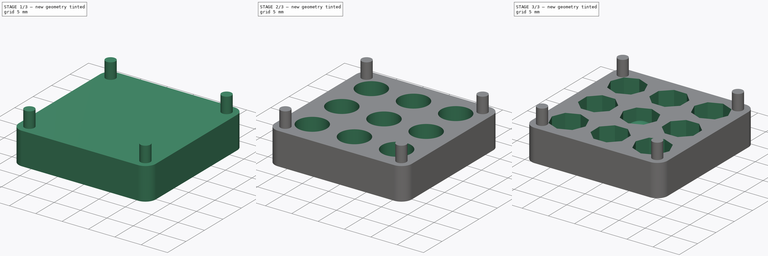
[diagram: build sequence overview — one tinted view per stage of 3, left to right]
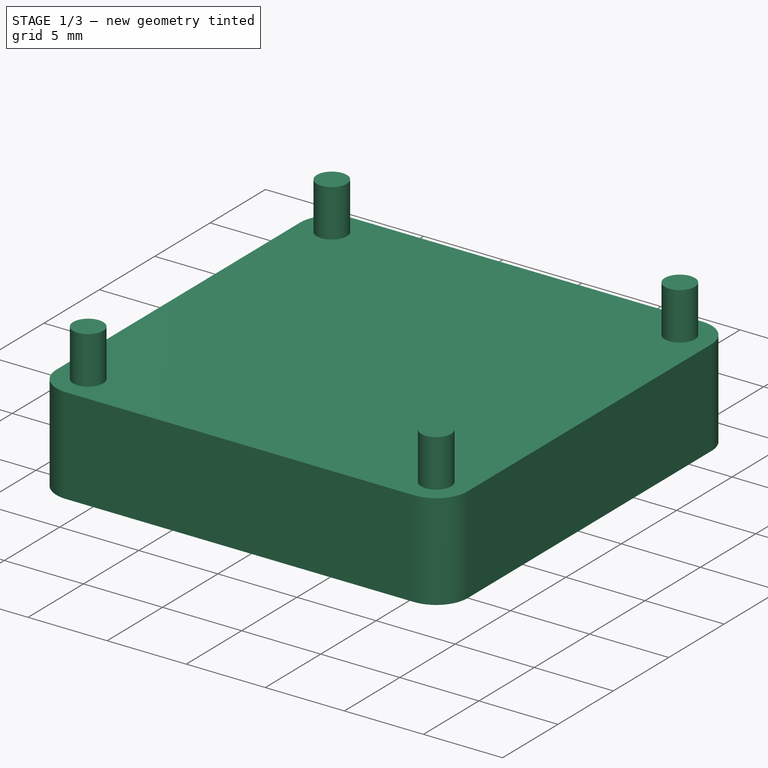
[diagram: stage 1 of 3 — iso view after this stage's code; geometry added in this stage tinted green]
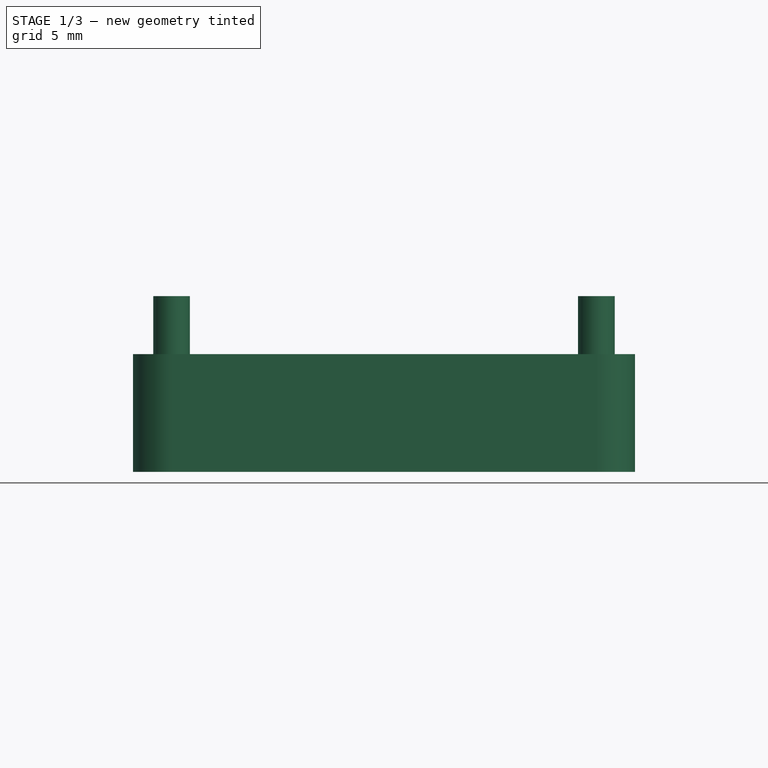
[diagram: stage 1 of 3 — front view after this stage's code; geometry added in this stage tinted green]
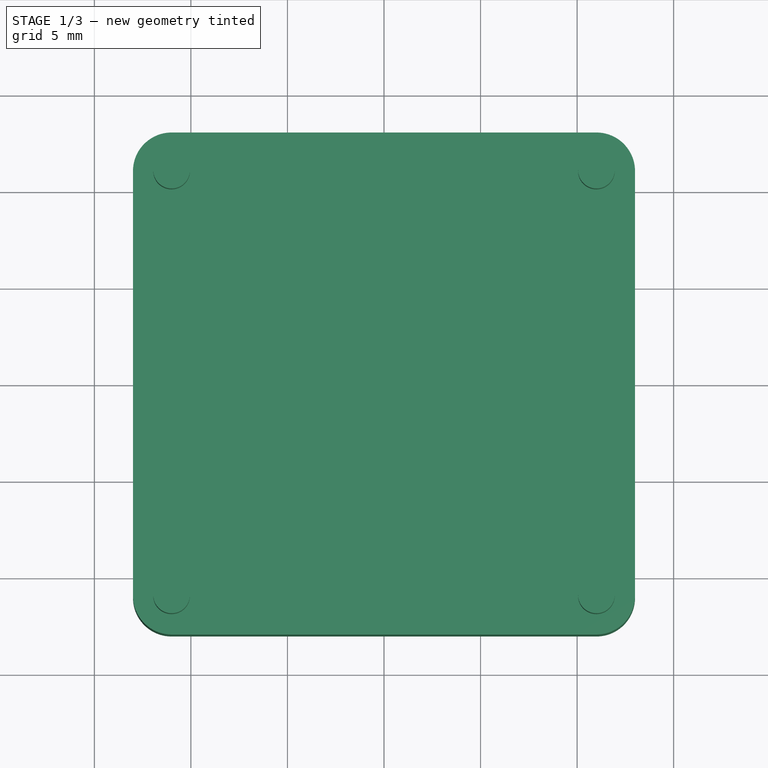
[diagram: stage 1 of 3 — top view after this stage's code; geometry added in this stage tinted green]
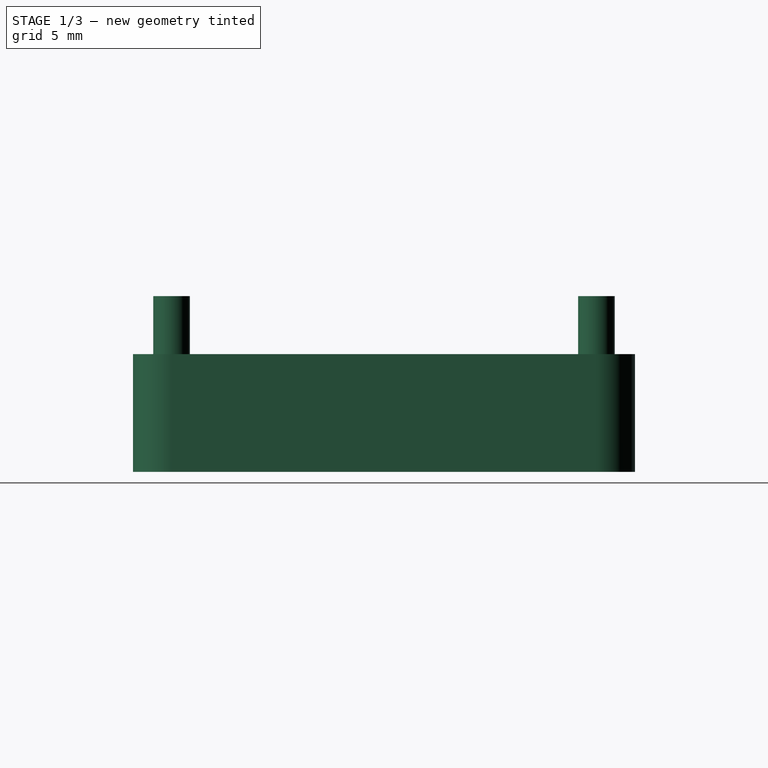
[diagram: stage 1 of 3 — right view after this stage's code; geometry added in this stage tinted green]
FCSTD DOCUMENT  (FreeCAD 1.0R39109 (Git))
Label: Optical-Housing
License: All rights reserved
LicenseURL: http://en.wikipedia.org/wiki/All_rights_reserved
objects: Sketcher::SketchObject×5, PartDesign::Pocket×3, PartDesign::Pad×2, Part::Sphere×1, PartDesign::Body×1
note: 27 computed .brp shape members not serialized (recipe doc carries the construction recipe); baked Part::Feature solids carry a one-line shape summary decoded from their .brp

FEATURE [Sketcher::SketchObject] Sketch  label="Block"
  ArcFitTolerance = 0
  AttachmentSupport = -> [XY_Plane]
  FullyConstrained = true
  MakeInternals = false
  MapMode = 5
  sketch-geometry (15):
    g0: LineSegment [constr] StartX=13 StartY=-13 StartZ=0 EndX=13 EndY=13 EndZ=0
    g1: LineSegment [constr] StartX=13 StartY=13 StartZ=0 EndX=-13 EndY=13 EndZ=0
    g2: LineSegment [constr] StartX=-13 StartY=13 StartZ=0 EndX=-13 EndY=-13 EndZ=0
    g3: LineSegment [constr] StartX=-13 StartY=-13 StartZ=0 EndX=13 EndY=-13 EndZ=0
    g4: GeomPoint [constr] X=0 Y=0 Z=0
    g5: ArcOfCircle CenterX=-11 CenterY=11 CenterZ=0 NormalX=0 NormalY=0 NormalZ=1 AngleXU=0 Radius=2 StartAngle=1.5708 EndAngle=3.14159
    g6: LineSegment StartX=-11 StartY=13 StartZ=0 EndX=11 EndY=13 EndZ=0
    g7: ArcOfCircle CenterX=11 CenterY=11 CenterZ=0 NormalX=0 NormalY=0 NormalZ=1 AngleXU=0 Radius=2 StartAngle=2e-16 EndAngle=1.5708
    g8: LineSegment StartX=13 StartY=11 StartZ=0 EndX=13 EndY=-11 EndZ=0
    g9: ArcOfCircle CenterX=11 CenterY=-11 CenterZ=0 NormalX=0 NormalY=0 NormalZ=1 AngleXU=0 Radius=2 StartAngle=4.71239 EndAngle=6.28319
    g10: LineSegment StartX=11 StartY=-13 StartZ=0 EndX=-11 EndY=-13 EndZ=0
    g11: ArcOfCircle CenterX=-11 CenterY=-11 CenterZ=0 NormalX=0 NormalY=0 NormalZ=1 AngleXU=0 Radius=2 StartAngle=3.14159 EndAngle=4.71239
    g12: LineSegment StartX=-13 StartY=-11 StartZ=0 EndX=-13 EndY=11 EndZ=0
    g13: GeomPoint [constr] X=-13 Y=13 Z=0
    g14: GeomPoint [constr] X=13 Y=-13 Z=0
  constraints (34):
    c: Coincident(g0,g1)
    c: Coincident(g1,g2)
    c: Coincident(g2,g3)
    c: Coincident(g3,g0)
    c: Horizontal(g1)
    c: Horizontal(g3)
    c: Vertical(g0)
    c: Vertical(g2)
    c: Symmetric(g1,g0,g4)
    c: Coincident(g4,g-1)
    c: DistanceY(g0,g0) = 26
    c: DistanceX(g1,g0) = 26
    c: Tangent(g5,g6) = 1.5708
    c: Tangent(g6,g7) = 1.5708
    c: Tangent(g7,g8) = 1.5708
    c: Tangent(g8,g9) = 1.5708
    c: Tangent(g9,g10) = 1.5708
    c: Tangent(g10,g11) = 1.5708
    c: Tangent(g11,g12) = 1.5708
    c: Tangent(g12,g5) = 1.5708
    c: Horizontal(g6)
    c: Horizontal(g10)
    c: Vertical(g8)
    c: Vertical(g12)
    c: Equal(g5,g7)
    c: Equal(g7,g9)
    c: Equal(g9,g11)
    c: PointOnObject(g13,g6)
    c: PointOnObject(g13,g12)
    c: PointOnObject(g14,g8)
    c: PointOnObject(g14,g10)
    c: Coincident(g13,g1)
    c: Coincident(g14,g0)
    c: Radius(g5) = 2
FEATURE [Sketcher::SketchObject] Sketch001  label="HOLE_Full-Dia"
  ArcFitTolerance = 0
  AttachmentOffset = pos=(0,0,-3.4) rot=(0,0,1;0rad)
  AttachmentSupport = -> [XY_Plane]
  FullyConstrained = true
  MakeInternals = false
  MapMode = 5
  Placement = pos=(0,0,-3.4) rot=(0,0,1;0rad)
  expr: Constraints[37] = .Constraints.HoleDiameter
  sketch-geometry (18):
    g0: Circle CenterX=0 CenterY=0 CenterZ=0 NormalX=0 NormalY=0 NormalZ=1 AngleXU=0 Radius=3.05
    g1: LineSegment [constr] StartX=8 StartY=-8 StartZ=0 EndX=8 EndY=8 EndZ=0
    g2: LineSegment [constr] StartX=8 StartY=8 StartZ=0 EndX=-8 EndY=8 EndZ=0
    g3: LineSegment [constr] StartX=-8 StartY=8 StartZ=0 EndX=-8 EndY=-8 EndZ=0
    g4: LineSegment [constr] StartX=-8 StartY=-8 StartZ=0 EndX=8 EndY=-8 EndZ=0
    g5: GeomPoint [constr] X=0 Y=0 Z=0
    g6: GeomPoint [constr] X=0 Y=8 Z=0
    g7: GeomPoint [constr] X=-8 Y=0 Z=0
    g8: GeomPoint [constr] X=8 Y=0 Z=0
    g9: GeomPoint [constr] X=0 Y=-8 Z=0
    g10: Circle CenterX=0 CenterY=8 CenterZ=0 NormalX=0 NormalY=0 NormalZ=1 AngleXU=0 Radius=3.05
    g11: Circle CenterX=8 CenterY=8 CenterZ=0 NormalX=0 NormalY=0 NormalZ=1 AngleXU=0 Radius=3.05
    g12: Circle CenterX=8 CenterY=0 CenterZ=0 NormalX=0 NormalY=0 NormalZ=1 AngleXU=0 Radius=3.05
    g13: Circle CenterX=8 CenterY=-8 CenterZ=0 NormalX=0 NormalY=0 NormalZ=1 AngleXU=0 Radius=3.05
    g14: Circle CenterX=0 CenterY=-8 CenterZ=0 NormalX=0 NormalY=0 NormalZ=1 AngleXU=0 Radius=3.05
    g15: Circle CenterX=-8 CenterY=-8 CenterZ=0 NormalX=0 NormalY=0 NormalZ=1 AngleXU=0 Radius=3.05
    g16: Circle CenterX=-8 CenterY=0 CenterZ=0 NormalX=0 NormalY=0 NormalZ=1 AngleXU=0 Radius=3.05
    g17: Circle CenterX=-8 CenterY=8 CenterZ=0 NormalX=0 NormalY=0 NormalZ=1 AngleXU=0 Radius=3.05
  constraints (32):
    c: Coincident(g0,g-1)
    c: Diameter(g0) = 6.1  'HoleDiameter'
    c: Coincident(g1,g2)
    c: Coincident(g2,g3)
    c: Coincident(g3,g4)
    c: Coincident(g4,g1)
    c: Horizontal(g2)
    c: Horizontal(g4)
    c: Vertical(g1)
    c: Vertical(g3)
    c: Symmetric(g2,g1,g5)
    c: Coincident(g5,g0)
    c: DistanceY(g1,g1) = 16
    c: DistanceX(g2,g1) = 16
    c: PointOnObject(g6,g2)
    c: PointOnObject(g7,g3)
    c: PointOnObject(g8,g1)
    c: PointOnObject(g9,g4)
    c: Coincident(g10,g6)
    c: Coincident(g11,g1)
    c: Coincident(g12,g8)
    c: Coincident(g13,g1)
    c: Coincident(g14,g9)
    c: Coincident(g15,g3)
    c: Coincident(g16,g7)
    c: Coincident(g17,g2)
    c: PointOnObject(g7,g-1)
    c: PointOnObject(g8,g-1)
    c: PointOnObject(g6,g-2)
    c: PointOnObject(g9,g-2)
    c: Equal(g17, g10-g16) x7
    c: Diameter(g17) = 6.1
FEATURE [Sketcher::SketchObject] Sketch002  label="Lugs"
  ArcFitTolerance = 0
  AttachmentSupport = -> [XY_Plane]
  ExternalGeometry = -> [Sketch]
  FullyConstrained = true
  MakeInternals = false
  MapMode = 5
  sketch-geometry (4):
    g0: Circle CenterX=-11 CenterY=11 CenterZ=0 NormalX=0 NormalY=0 NormalZ=1 AngleXU=0 Radius=0.95
    g1: Circle CenterX=11 CenterY=11 CenterZ=0 NormalX=0 NormalY=0 NormalZ=1 AngleXU=0 Radius=0.95
    g2: Circle CenterX=11 CenterY=-11 CenterZ=0 NormalX=0 NormalY=0 NormalZ=1 AngleXU=0 Radius=0.95
    g3: Circle CenterX=-11 CenterY=-11 CenterZ=0 NormalX=0 NormalY=0 NormalZ=1 AngleXU=0 Radius=0.95
  constraints (8):
    c: Coincident(g0,g-3)
    c: Coincident(g1,g-4)
    c: Coincident(g2,g-5)
    c: Coincident(g3,g-6)
    c: Diameter(g0) = 1.9
    c: Equal(g1,g0)
    c: Equal(g2,g0)
    c: Equal(g3,g0)
FEATURE [PartDesign::Pad] Pad
  Direction = (0,0,1)
  Length = 6.1
  Length2 = 10
  Profile = -> Sketch
  ReferenceAxis = -> Sketch [N_Axis]
  Reversed = true
  Suppressed = false
  Type = 0
FEATURE [PartDesign::Pad] Pad001
  BaseFeature = -> Pad
  Direction = (0,0,1)
  Length = 3
  Length2 = 10
  Profile = -> Sketch002
  ReferenceAxis = -> Sketch002 [N_Axis]
  Suppressed = false
  Type = 0
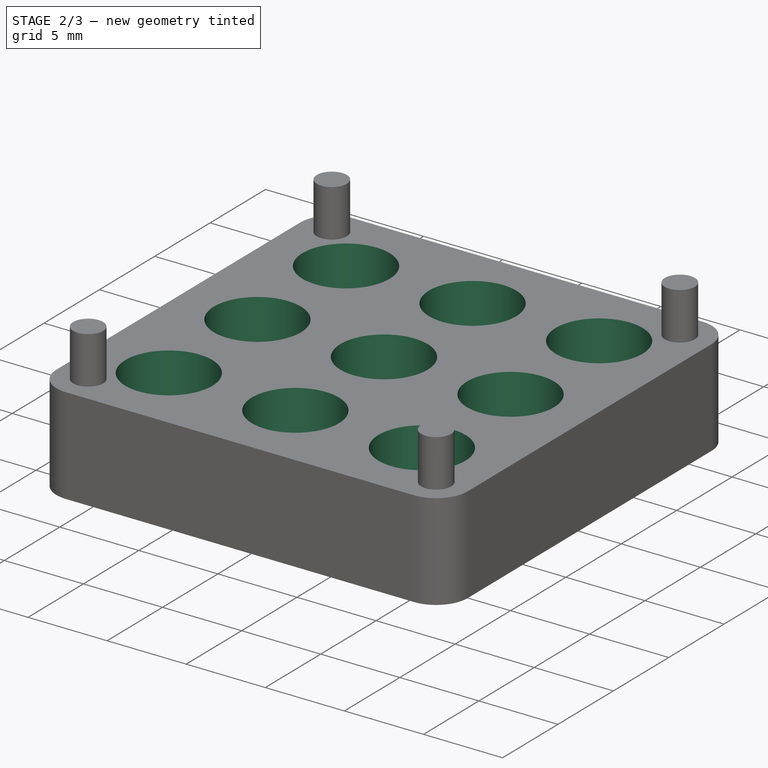
[diagram: stage 2 of 3 — iso view after this stage's code; geometry added in this stage tinted green]
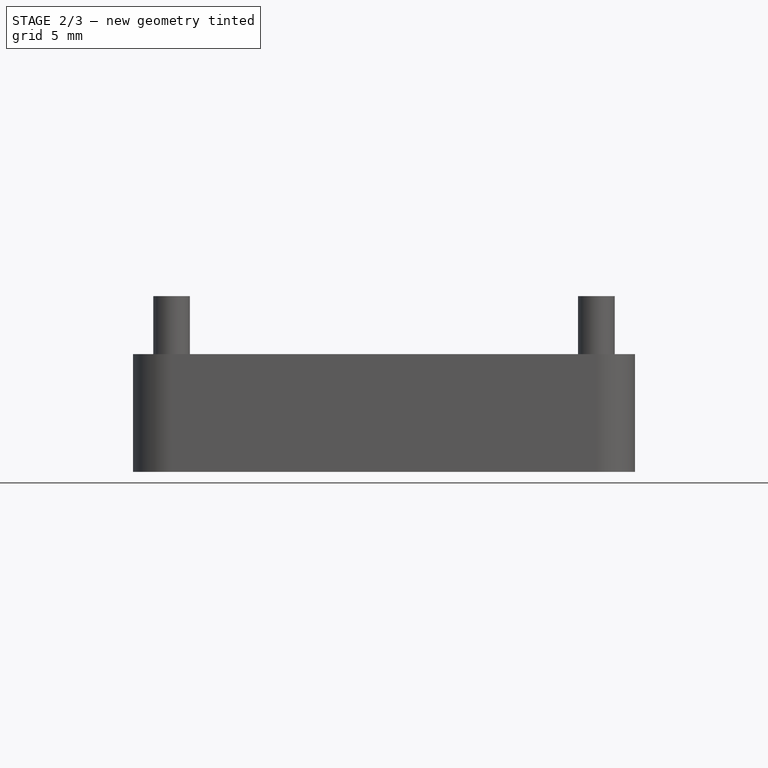
[diagram: stage 2 of 3 — front view after this stage's code; geometry added in this stage tinted green]
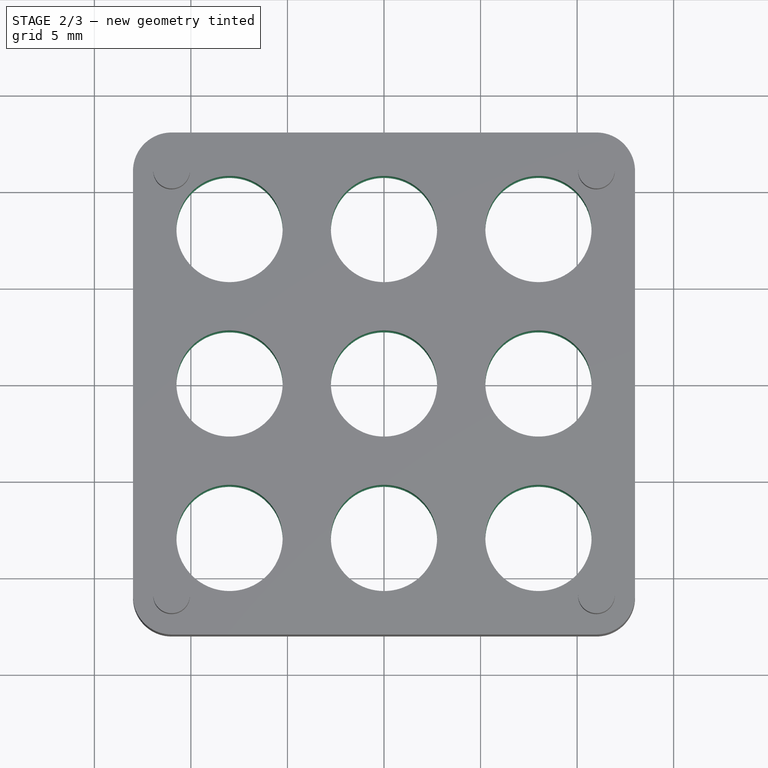
[diagram: stage 2 of 3 — top view after this stage's code; geometry added in this stage tinted green]
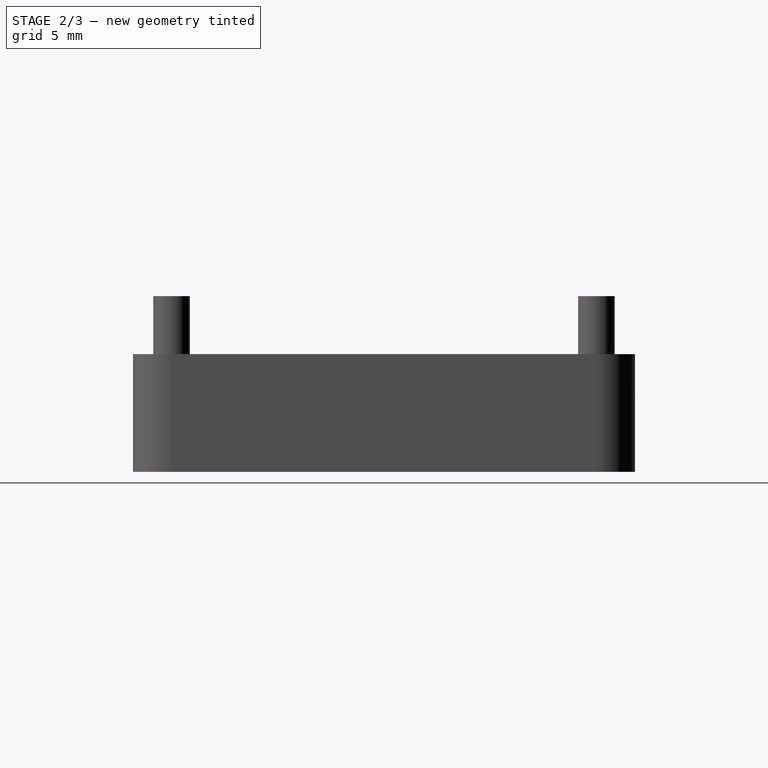
[diagram: stage 2 of 3 — right view after this stage's code; geometry added in this stage tinted green]
FEATURE [PartDesign::Pocket] Pocket  label="Pocket_Full-Dia"
  BaseFeature = -> Pad001
  Direction = (0,0,-1)
  Length = 1.8
  Length2 = 5
  Profile = -> Sketch001
  ReferenceAxis = -> Sketch001 [N_Axis]
  Suppressed = false
  Type = 0
FEATURE [Sketcher::SketchObject] Sketch003  label="HOLE_Retain-Dia"
  ArcFitTolerance = 0
  AttachmentSupport = -> [XY_Plane]
  FullyConstrained = true
  MakeInternals = false
  MapMode = 5
  expr: Constraints[33] = .Constraints.LipDiameter
  sketch-geometry (18):
    g0: Circle CenterX=0 CenterY=0 CenterZ=0 NormalX=0 NormalY=0 NormalZ=1 AngleXU=0 Radius=2.75
    g1: LineSegment [constr] StartX=8 StartY=-8 StartZ=0 EndX=8 EndY=8 EndZ=0
    g2: LineSegment [constr] StartX=8 StartY=8 StartZ=0 EndX=-8 EndY=8 EndZ=0
    g3: LineSegment [constr] StartX=-8 StartY=8 StartZ=0 EndX=-8 EndY=-8 EndZ=0
    g4: LineSegment [constr] StartX=-8 StartY=-8 StartZ=0 EndX=8 EndY=-8 EndZ=0
    g5: GeomPoint [constr] X=0 Y=0 Z=0
    g6: GeomPoint [constr] X=0 Y=8 Z=0
    g7: GeomPoint [constr] X=-8 Y=0 Z=0
    g8: GeomPoint [constr] X=8 Y=0 Z=0
    g9: GeomPoint [constr] X=0 Y=-8 Z=0
    g10: Circle CenterX=0 CenterY=8 CenterZ=0 NormalX=0 NormalY=0 NormalZ=1 AngleXU=0 Radius=2.75
    g11: Circle CenterX=8 CenterY=8 CenterZ=0 NormalX=0 NormalY=0 NormalZ=1 AngleXU=0 Radius=2.75
    g12: Circle CenterX=8 CenterY=0 CenterZ=0 NormalX=0 NormalY=0 NormalZ=1 AngleXU=0 Radius=2.75
    g13: Circle CenterX=8 CenterY=-8 CenterZ=0 NormalX=0 NormalY=0 NormalZ=1 AngleXU=0 Radius=2.75
    g14: Circle CenterX=0 CenterY=-8 CenterZ=0 NormalX=0 NormalY=0 NormalZ=1 AngleXU=0 Radius=2.75
    g15: Circle CenterX=-8 CenterY=-8 CenterZ=0 NormalX=0 NormalY=0 NormalZ=1 AngleXU=0 Radius=2.75
    g16: Circle CenterX=-8 CenterY=0 CenterZ=0 NormalX=0 NormalY=0 NormalZ=1 AngleXU=0 Radius=2.75
    g17: Circle CenterX=-8 CenterY=8 CenterZ=0 NormalX=0 NormalY=0 NormalZ=1 AngleXU=0 Radius=2.75
  constraints (32):
    c: Coincident(g0,g-1)
    c: Diameter(g0) = 5.5  'LipDiameter'
    c: Coincident(g1,g2)
    c: Coincident(g2,g3)
    c: Coincident(g3,g4)
    c: Coincident(g4,g1)
    c: Horizontal(g2)
    c: Horizontal(g4)
    c: Vertical(g1)
    c: Vertical(g3)
    c: Symmetric(g2,g1,g5)
    c: Coincident(g5,g0)
    c: DistanceY(g1,g1) = 16
    c: DistanceX(g2,g1) = 16
    c: PointOnObject(g6,g2)
    c: PointOnObject(g7,g3)
    c: PointOnObject(g8,g1)
    c: PointOnObject(g9,g4)
    c: Coincident(g10,g6)
    c: Coincident(g11,g1)
    c: Coincident(g12,g8)
    c: Coincident(g13,g1)
    c: Coincident(g14,g9)
    c: Coincident(g15,g3)
    c: Coincident(g16,g7)
    c: Coincident(g17,g2)
    c: Equal(g17, g10-g16) x7
    c: Diameter(g17) = 5.5
    c: PointOnObject(g7,g-1)
    c: PointOnObject(g6,g-2)
    c: PointOnObject(g8,g-1)
    c: PointOnObject(g9,g-2)
FEATURE [PartDesign::Pocket] Pocket001  label="Pocket_Retain-Dia"
  BaseFeature = -> Pocket
  Direction = (0,0,-1)
  Length = 6.5
  Length2 = 5
  Profile = -> Sketch003
  ReferenceAxis = -> Sketch003 [N_Axis]
  Suppressed = false
  Type = 0
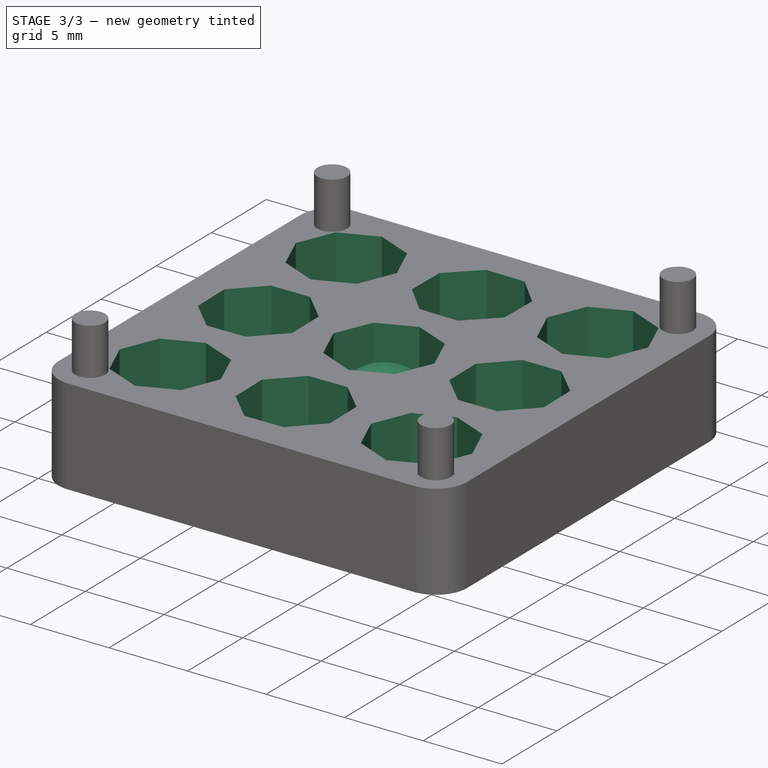
[diagram: stage 3 of 3 — iso view after this stage's code; geometry added in this stage tinted green]
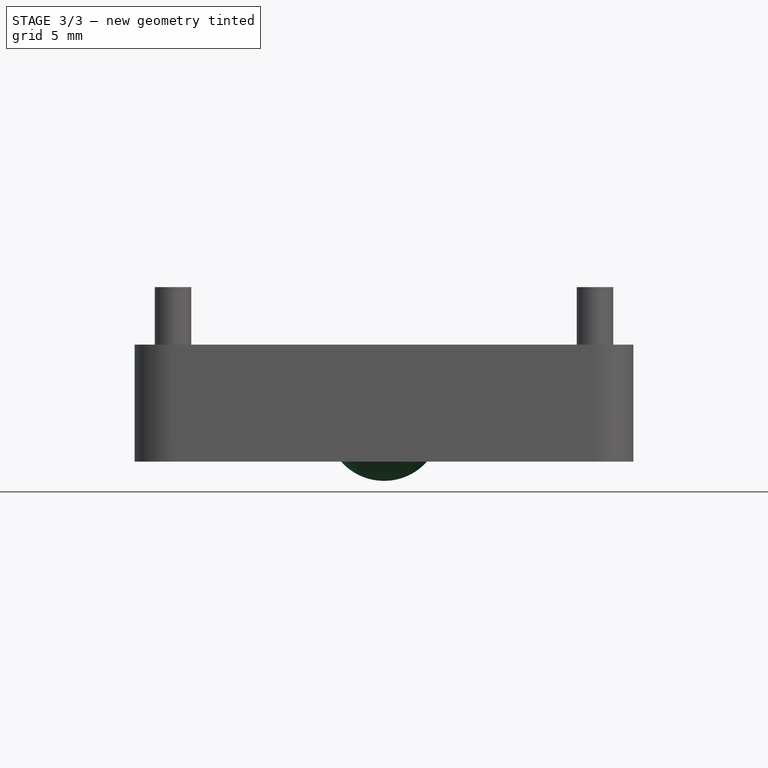
[diagram: stage 3 of 3 — front view after this stage's code; geometry added in this stage tinted green]
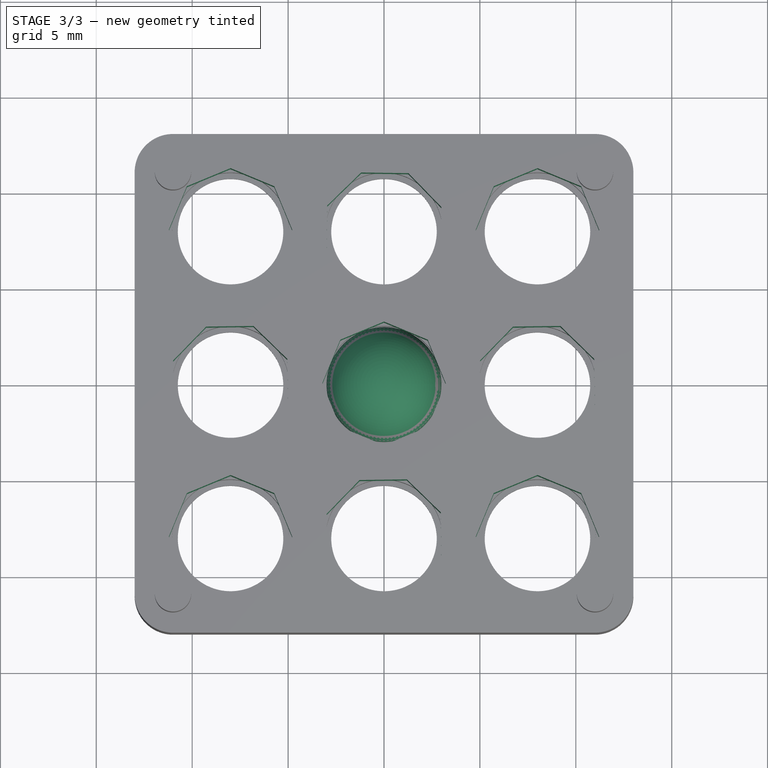
[diagram: stage 3 of 3 — top view after this stage's code; geometry added in this stage tinted green]
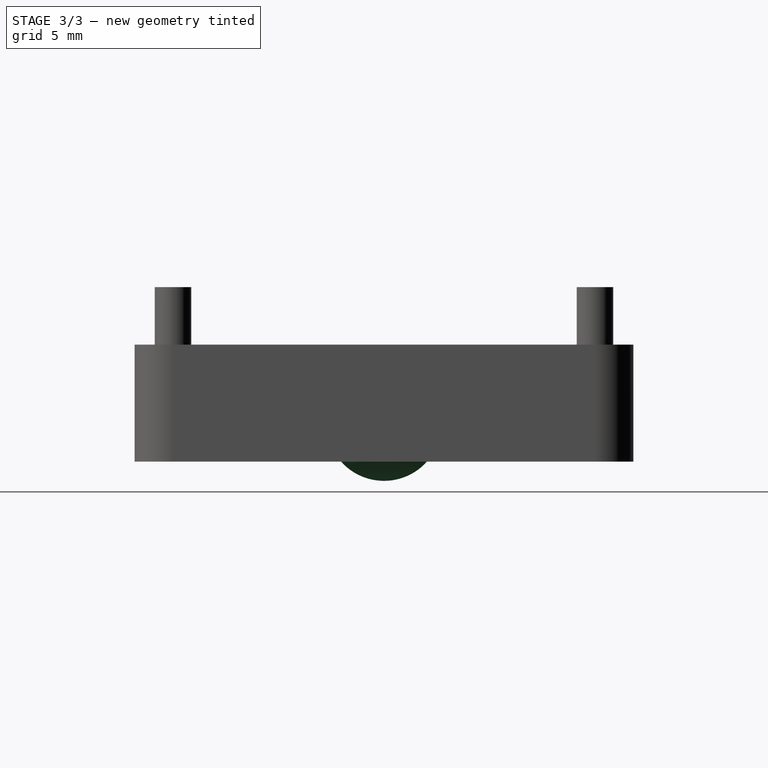
[diagram: stage 3 of 3 — right view after this stage's code; geometry added in this stage tinted green]
FEATURE [Part::Sphere] Sphere  label="Sphere-6.0mm"
  Angle1 = -90
  Angle2 = 90
  Angle3 = 360
  AttacherType = Attacher::AttachEngine3D
  Placement = pos=(0,0,-4.1) rot=(0,0,1;0rad)
  Radius = 3
FEATURE [Sketcher::SketchObject] Sketch004
  ArcFitTolerance = 1e-06
  AttachmentSupport = -> [XY_Plane]
  ExternalGeometry = -> [Sketch001]
  FullyConstrained = true
  MakeInternals = false
  MapMode = 5
  expr: Constraints[143] = .Constraints.Ret_Dia
  expr: Constraints[144] = .Constraints.Ret_Dia
  expr: Constraints[145] = .Constraints.Ret_Dia
  expr: Constraints[250] = .Constraints.Ret_Dia
  expr: Constraints[251] = .Constraints.Ret_Dia
  expr: Constraints[252] = .Constraints.Ret_Dia
  expr: Constraints[253] = .Constraints.Ret_Dia
  expr: Constraints[55] = .Constraints.Ret_Dia
  sketch-geometry (91):
    g0: LineSegment StartX=-3.22012 StartY=0 StartZ=0 EndX=-2.27697 EndY=-2.27697 EndZ=0
    g1: LineSegment StartX=-2.27697 StartY=-2.27697 StartZ=0 EndX=0 EndY=-3.22012 EndZ=0
    g2: LineSegment StartX=0 StartY=-3.22012 StartZ=0 EndX=2.27697 EndY=-2.27697 EndZ=0
    g3: LineSegment StartX=2.27697 StartY=-2.27697 StartZ=0 EndX=3.22012 EndY=4e-16 EndZ=0
    g4: LineSegment StartX=3.22012 StartY=4e-16 StartZ=0 EndX=2.27697 EndY=2.27697 EndZ=0
    g5: LineSegment StartX=2.27697 StartY=2.27697 StartZ=0 EndX=0 EndY=3.22012 EndZ=0
    g6: LineSegment StartX=0 StartY=3.22012 StartZ=0 EndX=-2.27697 EndY=2.27697 EndZ=0
    g7: LineSegment StartX=-2.27697 StartY=2.27697 StartZ=0 EndX=-3.22012 EndY=0 EndZ=0
    g8: Circle [constr] CenterX=0 CenterY=0 CenterZ=0 NormalX=0 NormalY=0 NormalZ=1 AngleXU=0 Radius=3.22012
    g9: LineSegment [constr] StartX=-8 StartY=0 StartZ=0 EndX=-2.27697 EndY=2.27697 EndZ=0
    g10: LineSegment [constr] StartX=-8 StartY=0 StartZ=0 EndX=-2.27697 EndY=-2.27697 EndZ=0
    g11: LineSegment StartX=-5.00799 StartY=-1.1904 StartZ=0 EndX=-5.04259 EndY=1.27393 EndZ=0
    g12: LineSegment StartX=-5.04259 StartY=1.27393 StartZ=0 EndX=-6.8096 EndY=2.99201 EndZ=0
    g13: LineSegment StartX=-6.8096 StartY=2.99201 StartZ=0 EndX=-9.27393 EndY=2.95741 EndZ=0
    g14: LineSegment StartX=-9.27393 StartY=2.95741 StartZ=0 EndX=-10.992 EndY=1.1904 EndZ=0
    g15: LineSegment StartX=-10.992 StartY=1.1904 StartZ=0 EndX=-10.9574 EndY=-1.27393 EndZ=0
    g16: LineSegment StartX=-10.9574 StartY=-1.27393 StartZ=0 EndX=-9.1904 EndY=-2.99201 EndZ=0
    g17: LineSegment StartX=-9.1904 StartY=-2.99201 StartZ=0 EndX=-6.72607 EndY=-2.95741 EndZ=0
    g18: LineSegment StartX=-6.72607 StartY=-2.95741 StartZ=0 EndX=-5.00799 EndY=-1.1904 EndZ=0
    g19: Circle [constr] CenterX=-8 CenterY=0 CenterZ=0 NormalX=0 NormalY=0 NormalZ=1 AngleXU=0 Radius=3.22012
    g20: LineSegment [constr] StartX=-2.27697 StartY=2.27697 StartZ=0 EndX=0 EndY=8 EndZ=0
    g21: LineSegment [constr] StartX=2.27697 StartY=2.27697 StartZ=0 EndX=0 EndY=8 EndZ=0
    g22: LineSegment [constr] StartX=2.27697 StartY=2.27697 StartZ=0 EndX=8 EndY=0 EndZ=0
    g23: LineSegment [constr] StartX=2.27697 StartY=-2.27697 StartZ=0 EndX=8 EndY=0 EndZ=0
    g24: LineSegment [constr] StartX=0 StartY=-8 StartZ=0 EndX=2.27697 EndY=-2.27697 EndZ=0
    g25: LineSegment [constr] StartX=0 StartY=-8 StartZ=0 EndX=-2.27697 EndY=-2.27697 EndZ=0
    g26: LineSegment StartX=1.1904 StartY=5.00799 StartZ=0 EndX=2.95741 EndY=6.72607 EndZ=0
    g27: LineSegment StartX=2.95741 StartY=6.72607 StartZ=0 EndX=2.99201 EndY=9.1904 EndZ=0
    g28: LineSegment StartX=2.99201 StartY=9.1904 StartZ=0 EndX=1.27393 EndY=10.9574 EndZ=0
    g29: LineSegment StartX=1.27393 StartY=10.9574 StartZ=0 EndX=-1.1904 EndY=10.992 EndZ=0
    g30: LineSegment StartX=-1.1904 StartY=10.992 StartZ=0 EndX=-2.95741 EndY=9.27393 EndZ=0
    g31: LineSegment StartX=-2.95741 StartY=9.27393 StartZ=0 EndX=-2.99201 EndY=6.8096 EndZ=0
    g32: LineSegment StartX=-2.99201 StartY=6.8096 StartZ=0 EndX=-1.27393 EndY=5.04259 EndZ=0
    g33: LineSegment StartX=-1.27393 StartY=5.04259 StartZ=0 EndX=1.1904 EndY=5.00799 EndZ=0
    g34: Circle [constr] CenterX=0 CenterY=8 CenterZ=0 NormalX=0 NormalY=0 NormalZ=1 AngleXU=0 Radius=3.22012
    g35: LineSegment StartX=5.00799 StartY=1.1904 StartZ=0 EndX=5.04259 EndY=-1.27393 EndZ=0
    g36: LineSegment StartX=5.04259 StartY=-1.27393 StartZ=0 EndX=6.8096 EndY=-2.99201 EndZ=0
    g37: LineSegment StartX=6.8096 StartY=-2.99201 StartZ=0 EndX=9.27393 EndY=-2.95741 EndZ=0
    g38: LineSegment StartX=9.27393 StartY=-2.95741 StartZ=0 EndX=10.992 EndY=-1.1904 EndZ=0
    g39: LineSegment StartX=10.992 StartY=-1.1904 StartZ=0 EndX=10.9574 EndY=1.27393 EndZ=0
    g40: LineSegment StartX=10.9574 StartY=1.27393 StartZ=0 EndX=9.1904 EndY=2.99201 EndZ=0
    g41: LineSegment StartX=9.1904 StartY=2.99201 StartZ=0 EndX=6.72607 EndY=2.95741 EndZ=0
    g42: LineSegment StartX=6.72607 StartY=2.95741 StartZ=0 EndX=5.00799 EndY=1.1904 EndZ=0
    g43: Circle [constr] CenterX=8 CenterY=0 CenterZ=0 NormalX=0 NormalY=0 NormalZ=1 AngleXU=0 Radius=3.22012
    g44: LineSegment StartX=1.1904 StartY=-5.00799 StartZ=0 EndX=-1.27393 EndY=-5.04259 EndZ=0
    g45: LineSegment StartX=-1.27393 StartY=-5.04259 StartZ=0 EndX=-2.99201 EndY=-6.8096 EndZ=0
    g46: LineSegment StartX=-2.99201 StartY=-6.8096 StartZ=0 EndX=-2.95741 EndY=-9.27393 EndZ=0
    g47: LineSegment StartX=-2.95741 StartY=-9.27393 StartZ=0 EndX=-1.1904 EndY=-10.992 EndZ=0
    g48: LineSegment StartX=-1.1904 StartY=-10.992 StartZ=0 EndX=1.27393 EndY=-10.9574 EndZ=0
    g49: LineSegment StartX=1.27393 StartY=-10.9574 StartZ=0 EndX=2.99201 EndY=-9.1904 EndZ=0
    g50: LineSegment StartX=2.99201 StartY=-9.1904 StartZ=0 EndX=2.95741 EndY=-6.72607 EndZ=0
    g51: LineSegment StartX=2.95741 StartY=-6.72607 StartZ=0 EndX=1.1904 EndY=-5.00799 EndZ=0
    g52: Circle [constr] CenterX=0 CenterY=-8 CenterZ=0 NormalX=0 NormalY=0 NormalZ=1 AngleXU=0 Radius=3.22012
    g53: LineSegment [constr] StartX=8 StartY=8 StartZ=0 EndX=8 EndY=-8 EndZ=0
    g54: LineSegment [constr] StartX=-8 StartY=8 StartZ=0 EndX=-8 EndY=-8 EndZ=0
    g55: LineSegment StartX=-8 StartY=4.77988 StartZ=0 EndX=-5.72303 EndY=5.72303 EndZ=0
    g56: LineSegment StartX=-5.72303 StartY=5.72303 StartZ=0 EndX=-4.77988 EndY=8 EndZ=0
    g57: LineSegment StartX=-4.77988 StartY=8 StartZ=0 EndX=-5.72303 EndY=10.277 EndZ=0
    g58: LineSegment StartX=-5.72303 StartY=10.277 StartZ=0 EndX=-8 EndY=11.2201 EndZ=0
    g59: LineSegment StartX=-8 StartY=11.2201 StartZ=0 EndX=-10.277 EndY=10.277 EndZ=0
    g60: LineSegment StartX=-10.277 StartY=10.277 StartZ=0 EndX=-11.2201 EndY=8 EndZ=0
    g61: LineSegment StartX=-11.2201 StartY=8 StartZ=0 EndX=-10.277 EndY=5.72303 EndZ=0
    g62: LineSegment StartX=-10.277 StartY=5.72303 StartZ=0 EndX=-8 EndY=4.77988 EndZ=0
    g63: Circle [constr] CenterX=-8 CenterY=8 CenterZ=0 NormalX=0 NormalY=0 NormalZ=1 AngleXU=0 Radius=3.22012
    g64: LineSegment StartX=-8 StartY=-4.77988 StartZ=0 EndX=-10.277 EndY=-5.72303 EndZ=0
    g65: LineSegment StartX=-10.277 StartY=-5.72303 StartZ=0 EndX=-11.2201 EndY=-8 EndZ=0
    g66: LineSegment StartX=-11.2201 StartY=-8 StartZ=0 EndX=-10.277 EndY=-10.277 EndZ=0
    g67: LineSegment StartX=-10.277 StartY=-10.277 StartZ=0 EndX=-8 EndY=-11.2201 EndZ=0
    g68: LineSegment StartX=-8 StartY=-11.2201 StartZ=0 EndX=-5.72303 EndY=-10.277 EndZ=0
    g69: LineSegment StartX=-5.72303 StartY=-10.277 StartZ=0 EndX=-4.77988 EndY=-8 EndZ=0
    g70: LineSegment StartX=-4.77988 StartY=-8 StartZ=0 EndX=-5.72303 EndY=-5.72303 EndZ=0
    g71: LineSegment StartX=-5.72303 StartY=-5.72303 StartZ=0 EndX=-8 EndY=-4.77988 EndZ=0
    g72: Circle [constr] CenterX=-8 CenterY=-8 CenterZ=0 NormalX=0 NormalY=0 NormalZ=1 AngleXU=0 Radius=3.22012
    g73: LineSegment StartX=8 StartY=-4.77988 StartZ=0 EndX=5.72303 EndY=-5.72303 EndZ=0
    g74: LineSegment StartX=5.72303 StartY=-5.72303 StartZ=0 EndX=4.77988 EndY=-8 EndZ=0
    g75: LineSegment StartX=4.77988 StartY=-8 StartZ=0 EndX=5.72303 EndY=-10.277 EndZ=0
    g76: LineSegment StartX=5.72303 StartY=-10.277 StartZ=0 EndX=8 EndY=-11.2201 EndZ=0
    g77: LineSegment StartX=8 StartY=-11.2201 StartZ=0 EndX=10.277 EndY=-10.277 EndZ=0
    g78: LineSegment StartX=10.277 StartY=-10.277 StartZ=0 EndX=11.2201 EndY=-8 EndZ=0
    g79: LineSegment StartX=11.2201 StartY=-8 StartZ=0 EndX=10.277 EndY=-5.72303 EndZ=0
    g80: LineSegment StartX=10.277 StartY=-5.72303 StartZ=0 EndX=8 EndY=-4.77988 EndZ=0
    g81: Circle [constr] CenterX=8 CenterY=-8 CenterZ=0 NormalX=0 NormalY=0 NormalZ=1 AngleXU=0 Radius=3.22012
    g82: LineSegment StartX=8 StartY=4.77988 StartZ=0 EndX=10.277 EndY=5.72303 EndZ=0
    g83: LineSegment StartX=10.277 StartY=5.72303 StartZ=0 EndX=11.2201 EndY=8 EndZ=0
    g84: LineSegment StartX=11.2201 StartY=8 StartZ=0 EndX=10.277 EndY=10.277 EndZ=0
    g85: LineSegment StartX=10.277 StartY=10.277 StartZ=0 EndX=8 EndY=11.2201 EndZ=0
    g86: LineSegment StartX=8 StartY=11.2201 StartZ=0 EndX=5.72303 EndY=10.277 EndZ=0
    g87: LineSegment StartX=5.72303 StartY=10.277 StartZ=0 EndX=4.77988 EndY=8 EndZ=0
    g88: LineSegment StartX=4.77988 StartY=8 StartZ=0 EndX=5.72303 EndY=5.72303 EndZ=0
    g89: LineSegment StartX=5.72303 StartY=5.72303 StartZ=0 EndX=8 EndY=4.77988 EndZ=0
    g90: Circle [constr] CenterX=8 CenterY=8 CenterZ=0 NormalX=0 NormalY=0 NormalZ=1 AngleXU=0 Radius=3.22012
  constraints (200):
    c: Coincident(g0,g1)
    c: Coincident(g1,g2)
    c: Coincident(g2,g3)
    c: Coincident(g3,g4)
    c: Coincident(g4,g5)
    c: Coincident(g5,g6)
    c: Coincident(g6,g7)
    c: Coincident(g7,g0)
    c: Equal(g0, g1-g7) x7
    c: PointOnObject(g0,g8)
    c: PointOnObject(g1,g8)
    c: PointOnObject(g2,g8)
    c: PointOnObject(g3,g8)
    c: PointOnObject(g4,g8)
    c: PointOnObject(g5,g8)
    c: PointOnObject(g6,g8)
    c: PointOnObject(g7,g8)
    c: Coincident(g8,g-1)
    c: PointOnObject(g7,g-1)
    c: Distance(g0,g2) = 5.95  'Ret_Dia'
    c: Coincident(g9,g-11)
    c: Coincident(g9,g6)
    c: Coincident(g10,g9)
    c: Coincident(g10,g0)
    c: Coincident(g11,g12)
    c: Coincident(g12,g13)
    c: Coincident(g13,g14)
    c: Coincident(g14,g15)
    c: Coincident(g15,g16)
    c: Coincident(g16,g17)
    c: Coincident(g17,g18)
    c: Coincident(g18,g11)
    c: Equal(g11, g12-g18) x7
    c: PointOnObject(g11,g19)
    c: PointOnObject(g12,g19)
    c: PointOnObject(g13,g19)
    c: PointOnObject(g14,g19)
    c: PointOnObject(g15,g19)
    c: PointOnObject(g16,g19)
    c: PointOnObject(g17,g19)
    c: PointOnObject(g18,g19)
    c: Coincident(g19,g9)
    c: PointOnObject(g18,g10)
    c: Distance(g12,g17) = 5.95
    c: Coincident(g20,g6)
    c: Coincident(g20,g-7)
    c: Coincident(g21,g4)
    c: Coincident(g21,g20)
    c: Coincident(g22,g4)
    c: Coincident(g22,g-9)
    c: Coincident(g23,g2)
    c: Coincident(g23,g22)
    c: Coincident(g24,g-10)
    c: Coincident(g24,g2)
    c: Coincident(g25,g24)
    c: Coincident(g25,g0)
    c: Coincident(g26,g27)
    c: Coincident(g27,g28)
    c: Coincident(g28,g29)
    c: Coincident(g29,g30)
    c: Coincident(g30,g31)
    c: Coincident(g31,g32)
    c: Coincident(g32,g33)
    c: Coincident(g33,g26)
    c: Equal(g26, g27-g33) x7
    c: PointOnObject(g26,g34)
    c: PointOnObject(g27,g34)
    c: PointOnObject(g28,g34)
    c: PointOnObject(g29,g34)
    c: PointOnObject(g30,g34)
    c: PointOnObject(g31,g34)
    c: PointOnObject(g32,g34)
    c: PointOnObject(g33,g34)
    c: Coincident(g34,g20)
    c: PointOnObject(g33,g21)
    c: Coincident(g35,g36)
    c: Coincident(g36,g37)
    c: Coincident(g37,g38)
    c: Coincident(g38,g39)
    c: Coincident(g39,g40)
    c: Coincident(g40,g41)
    c: Coincident(g41,g42)
    c: Coincident(g42,g35)
    c: Equal(g35, g36-g42) x7
    c: PointOnObject(g35,g43)
    c: PointOnObject(g36,g43)
    c: PointOnObject(g37,g43)
    c: PointOnObject(g38,g43)
    c: PointOnObject(g39,g43)
    c: PointOnObject(g40,g43)
    c: PointOnObject(g41,g43)
    c: PointOnObject(g42,g43)
    c: Coincident(g43,g22)
    c: PointOnObject(g42,g22)
    c: Coincident(g44,g45)
    c: Coincident(g45,g46)
    c: Coincident(g46,g47)
    c: Coincident(g47,g48)
    c: Coincident(g48,g49)
    c: Coincident(g49,g50)
    c: Coincident(g50,g51)
    c: Coincident(g51,g44)
    c: Equal(g44, g45-g51) x7
    c: PointOnObject(g44,g52)
    c: PointOnObject(g45,g52)
    c: PointOnObject(g46,g52)
    c: PointOnObject(g47,g52)
    c: PointOnObject(g48,g52)
    c: PointOnObject(g49,g52)
    c: PointOnObject(g50,g52)
    c: PointOnObject(g51,g52)
    c: Coincident(g52,g24)
    c: PointOnObject(g51,g24)
    c: Distance(g31,g26) = 5.95
    c: Distance(g41,g36) = 5.95
    c: Distance(g45,g50) = 5.95
    c: Coincident(g53,g-8)
    c: Coincident(g53,g-5)
    c: Coincident(g54,g-3)
    c: Coincident(g54,g-6)
    c: Coincident(g55,g56)
    c: Coincident(g56,g57)
    c: Coincident(g57,g58)
    c: Coincident(g58,g59)
    c: Coincident(g59,g60)
    c: Coincident(g60,g61)
    c: Coincident(g61,g62)
    c: Coincident(g62,g55)
    c: Equal(g55, g56-g62) x7
    c: PointOnObject(g55,g63)
    c: PointOnObject(g56,g63)
    c: PointOnObject(g57,g63)
    c: PointOnObject(g58,g63)
    c: PointOnObject(g59,g63)
    c: PointOnObject(g60,g63)
    c: PointOnObject(g61,g63)
    c: PointOnObject(g62,g63)
    c: Coincident(g63,g54)
    c: PointOnObject(g62,g54)
    c: Coincident(g64,g65)
    c: Coincident(g65,g66)
    c: Coincident(g66,g67)
    c: Coincident(g67,g68)
    c: Coincident(g68,g69)
    c: Coincident(g69,g70)
    c: Coincident(g70,g71)
    c: Coincident(g71,g64)
    c: Equal(g64, g65-g71) x7
    c: PointOnObject(g64,g72)
    c: PointOnObject(g65,g72)
    c: PointOnObject(g66,g72)
    c: PointOnObject(g67,g72)
    c: PointOnObject(g68,g72)
    c: PointOnObject(g69,g72)
    c: PointOnObject(g70,g72)
    c: PointOnObject(g71,g72)
    c: Coincident(g72,g54)
    c: PointOnObject(g71,g54)
    c: Coincident(g73,g74)
    c: Coincident(g74,g75)
    c: Coincident(g75,g76)
    c: Coincident(g76,g77)
    c: Coincident(g77,g78)
    c: Coincident(g78,g79)
    c: Coincident(g79,g80)
    c: Coincident(g80,g73)
    c: Equal(g73, g74-g80) x7
    c: PointOnObject(g73,g81)
    c: PointOnObject(g74,g81)
    c: PointOnObject(g75,g81)
    c: PointOnObject(g76,g81)
    c: PointOnObject(g77,g81)
    c: PointOnObject(g78,g81)
    c: PointOnObject(g79,g81)
    c: PointOnObject(g80,g81)
    c: Coincident(g81,g53)
    c: PointOnObject(g80,g53)
    c: Coincident(g82,g83)
    c: Coincident(g83,g84)
    c: Coincident(g84,g85)
    c: Coincident(g85,g86)
    c: Coincident(g86,g87)
    c: Coincident(g87,g88)
    c: Coincident(g88,g89)
    c: Coincident(g89,g82)
    c: Equal(g82, g83-g89) x7
    c: PointOnObject(g82,g90)
    c: PointOnObject(g83,g90)
    c: PointOnObject(g84,g90)
    c: PointOnObject(g85,g90)
    c: PointOnObject(g86,g90)
    c: PointOnObject(g87,g90)
    c: PointOnObject(g88,g90)
    c: PointOnObject(g89,g90)
    c: Coincident(g90,g53)
    c: PointOnObject(g89,g53)
    c: Distance(g59,g56) = 5.95
    c: Distance(g86,g83) = 5.95
    c: Distance(g73,g78) = 5.95
    c: Distance(g64,g69) = 5.95
FEATURE [PartDesign::Pocket] Pocket002
  BaseFeature = -> Pocket001
  Direction = (0,0,-1)
  Length = 3.5
  Length2 = 5
  Profile = -> Sketch004
  ReferenceAxis = -> Sketch004 [N_Axis]
  Refine = true
  Suppressed = false
  Type = 0
FEATURE [PartDesign::Body] Body
  AllowCompound = false
  Group = -> [Sketch,Sketch001,Sketch002,Pad,Pad001,Pocket,Sketch003,Pocket001,Sketch004,Pocket002]
  Origin = -> Origin
  Tip = -> Pocket002
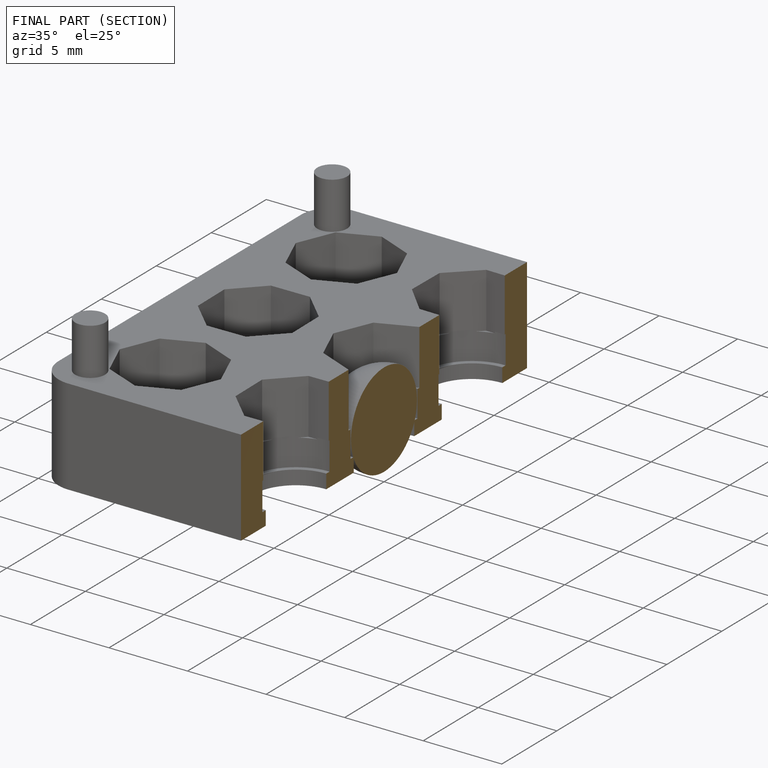
[diagram: finished part — half-section view (interior)]
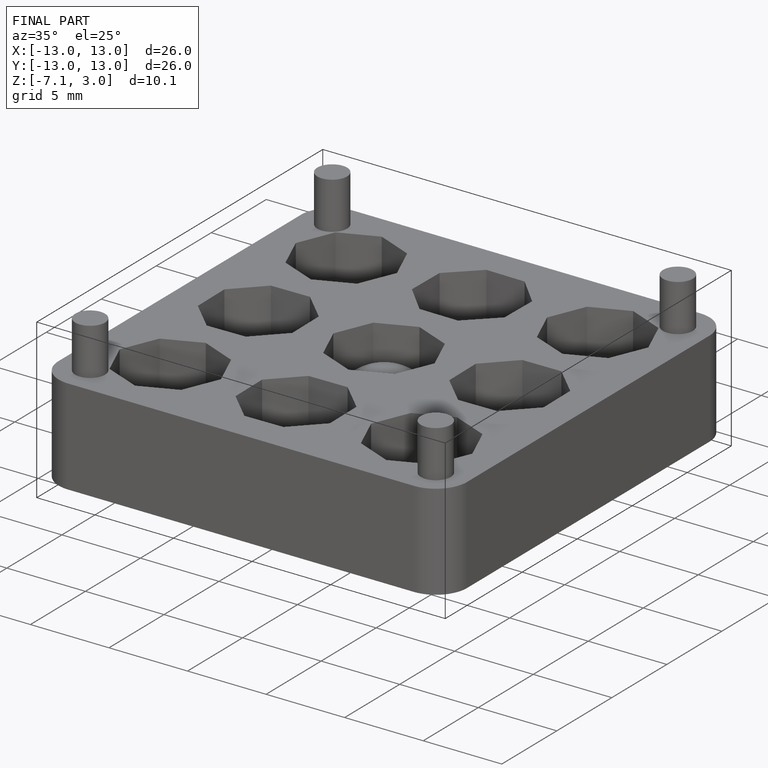
[diagram: finished part — iso view with bounding-box wireframe]
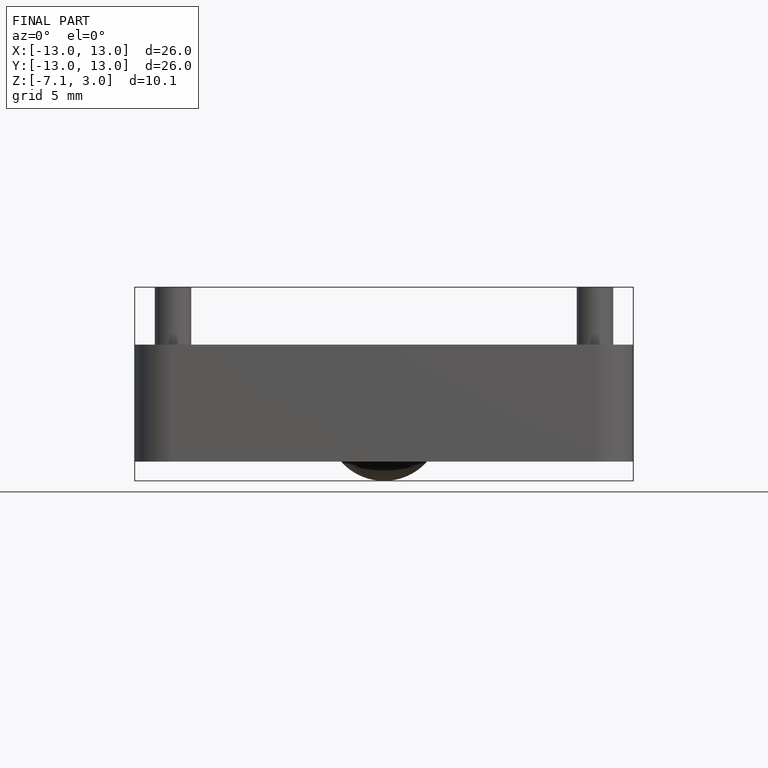
[diagram: finished part — front view with bounding-box wireframe]
